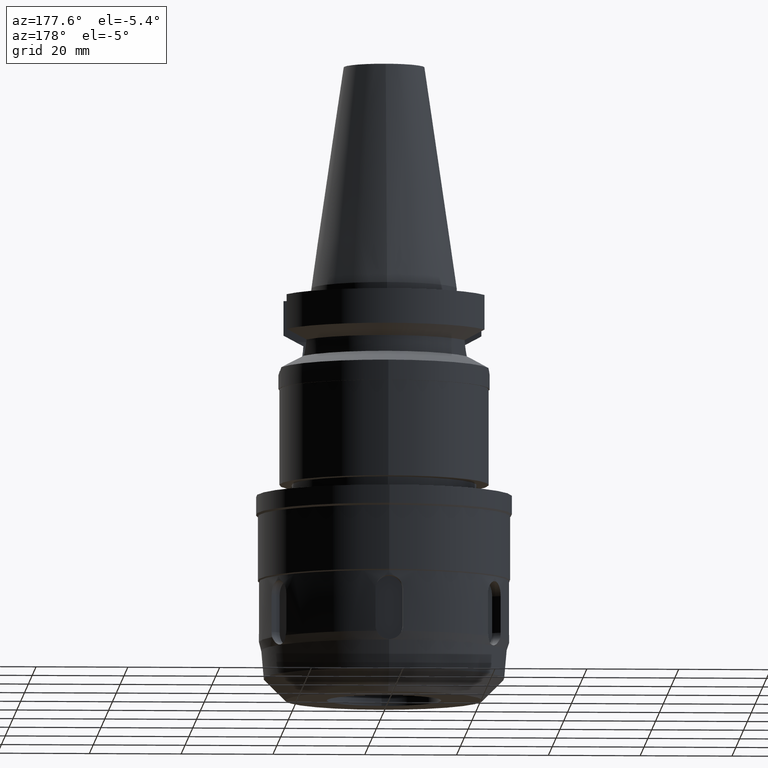
[diagram: clean part render]
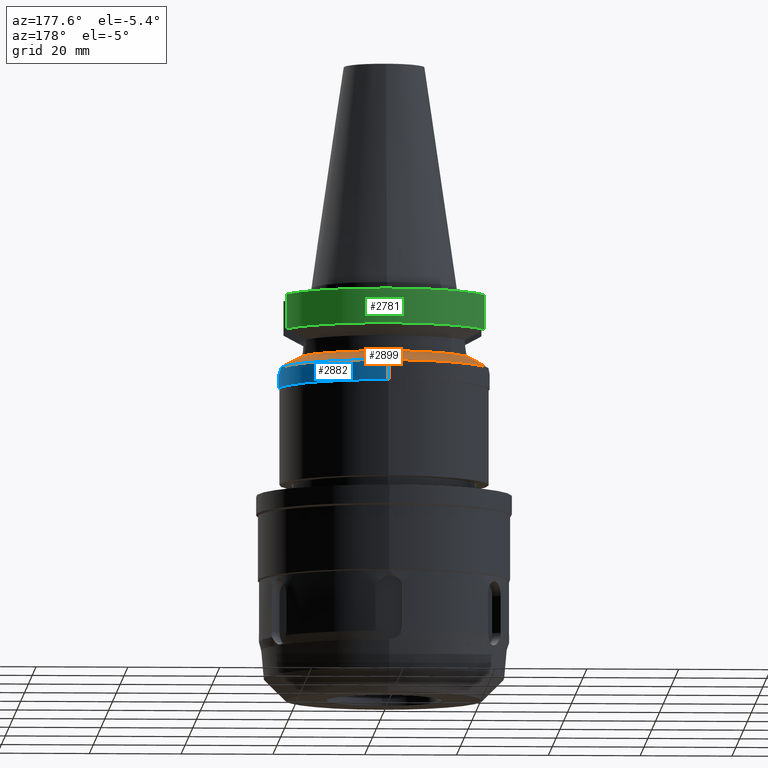
[diagram: same view with three faces highlighted in distinct colors, each labeled with its STEP entity id]
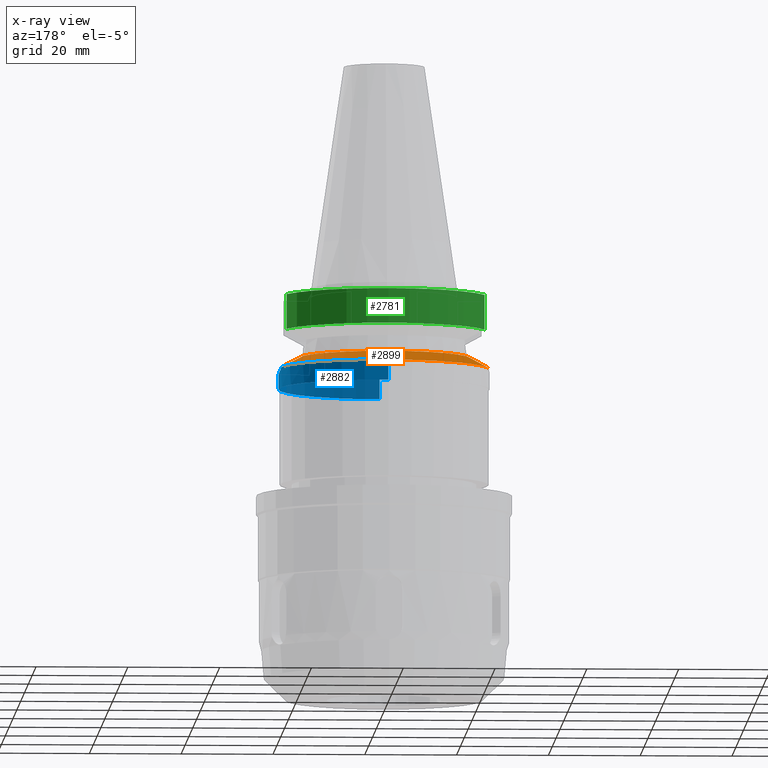
[diagram: x-ray of the same camera — body ghosted, the three highlighted faces saturated]
A machine part, auxiliary view with three faces highlighted in distinct colors.
The next image is the same camera in x-ray (body ghosted, the three faces saturated) — at least one of them is partly hidden behind the body in this view.
Their STEP definitions:

[orange] entity #2899 — the highlighted conical surface has half-angle 60 deg.
#532=CARTESIAN_POINT('',(2.255786346208E1,4.488072640470E0,-1.763279163029E1));
#544=CARTESIAN_POINT('',(-1.775736593456E1,6.758398853744E0,-1.532339055353E1));
#545=CARTESIAN_POINT('',(-1.820695488852E1,6.619830112125E0,-1.553752711715E1));
#546=CARTESIAN_POINT('',(-1.906385593562E1,6.322651705580E0,-1.594722428653E1));
#547=CARTESIAN_POINT('',(-2.005161156079E1,5.918242748231E0,-1.642163205725E1));
#548=CARTESIAN_POINT('',(-2.126758939081E1,5.327769122121E0,-1.700783199838E1));
#549=CARTESIAN_POINT('',(-2.212260541853E1,4.802343039718E0,-1.742173187284E1));
#550=CARTESIAN_POINT('',(-2.255786346208E1,4.488072640470E0,-1.763279163029E1));
#555=CARTESIAN_POINT('',(0.E0,1.022848384030E-14,-1.763279163029E1));
#556=DIRECTION('',(0.E0,0.E0,-1.E0));
#557=DIRECTION('',(-9.807766722644E-1,1.951335930639E-1,0.E0));
#558=AXIS2_PLACEMENT_3D('',#555,#556,#557);
#563=CARTESIAN_POINT('',(0.E0,1.022848384030E-14,-1.763279163029E1));
#564=DIRECTION('',(0.E0,0.E0,-1.E0));
#565=DIRECTION('',(0.E0,1.E0,0.E0));
#566=AXIS2_PLACEMENT_3D('',#563,#564,#565);
#571=CARTESIAN_POINT('',(2.255786346208E1,4.488072640470E0,-1.763279163029E1));
#572=CARTESIAN_POINT('',(2.224326935936E1,4.715219767854E0,-1.748024268605E1));
#573=CARTESIAN_POINT('',(2.156178343249E1,5.160673699127E0,-1.715009553086E1));
#574=CARTESIAN_POINT('',(2.025371930685E1,5.834367162426E0,-1.651879510597E1));
#575=CARTESIAN_POINT('',(1.902846819724E1,6.338946512169E0,-1.593017561434E1));
#576=CARTESIAN_POINT('',(1.818045704E1,6.627997068836E0,-1.552490634839E1));
#577=CARTESIAN_POINT('',(1.775736593456E1,6.758398853744E0,-1.532339055353E1));
#582=CARTESIAN_POINT('',(0.E0,1.022848384030E-14,-1.532339055353E1));
#583=DIRECTION('',(0.E0,0.E0,1.E0));
#584=DIRECTION('',(9.345982070819E-1,3.557052028286E-1,0.E0));
#585=AXIS2_PLACEMENT_3D('',#582,#583,#584);
#590=CARTESIAN_POINT('',(0.E0,1.022848384030E-14,-1.532339055353E1));
#591=DIRECTION('',(0.E0,0.E0,1.E0));
#592=DIRECTION('',(0.E0,1.E0,0.E0));
#593=AXIS2_PLACEMENT_3D('',#590,#591,#592);
#2184=CARTESIAN_POINT('',(1.775736593456E1,6.758398853744E0,-1.532339055353E1));
#2385=VERTEX_POINT('',#532);
#2387=CARTESIAN_POINT('',(0.E0,2.3E1,-1.763279163029E1));
#2388=VERTEX_POINT('',#2387);
#2403=VERTEX_POINT('',#2184);
#2408=VERTEX_POINT('',#544);
#2409=VERTEX_POINT('',#550);
#2410=CARTESIAN_POINT('',(0.E0,1.9E1,-1.532339055353E1));
#2411=VERTEX_POINT('',#2410);
#2883=CARTESIAN_POINT('',(0.E0,1.022848384030E-14,-1.647809109191E1));
#2884=DIRECTION('',(0.E0,0.E0,-1.E0));
#2885=DIRECTION('',(0.E0,-1.E0,0.E0));
#2886=AXIS2_PLACEMENT_3D('',#2883,#2884,#2885);
#2887=CONICAL_SURFACE('',#2886,2.1E1,6.E1);
#2888=ORIENTED_EDGE('',*,*,#2791,.T.);
#2890=ORIENTED_EDGE('',*,*,#2889,.T.);
#2891=ORIENTED_EDGE('',*,*,#2871,.T.);
#2892=ORIENTED_EDGE('',*,*,#2859,.T.);
#2894=ORIENTED_EDGE('',*,*,#2893,.T.);
#2896=ORIENTED_EDGE('',*,*,#2895,.T.);
#2897=EDGE_LOOP('',(#2888,#2890,#2891,#2892,#2894,#2896));
#2898=FACE_OUTER_BOUND('',#2897,.F.);
#551=B_SPLINE_CURVE_WITH_KNOTS('',3,(#544,#545,#546,#547,#548,#549,#550),
.UNSPECIFIED.,.F.,.F.,(4,1,1,1,4),(0.E0,2.5E-1,5.E-1,7.5E-1,1.E0),
.UNSPECIFIED.);
#559=CIRCLE('',#558,2.3E1);
#567=CIRCLE('',#566,2.3E1);
#578=B_SPLINE_CURVE_WITH_KNOTS('',3,(#571,#572,#573,#574,#575,#576,#577),
.UNSPECIFIED.,.F.,.F.,(4,1,1,1,4),(0.E0,2.5E-1,5.E-1,7.5E-1,1.E0),
.UNSPECIFIED.);
#586=CIRCLE('',#585,1.9E1);
#594=CIRCLE('',#593,1.9E1);
#2791=EDGE_CURVE('',#2408,#2409,#551,.T.);
#2859=EDGE_CURVE('',#2385,#2403,#578,.T.);
#2871=EDGE_CURVE('',#2388,#2385,#567,.T.);
#2889=EDGE_CURVE('',#2409,#2388,#559,.T.);
#2893=EDGE_CURVE('',#2403,#2411,#586,.T.);
#2895=EDGE_CURVE('',#2411,#2408,#594,.T.);
#2899=ADVANCED_FACE('',(#2898),#2887,.T.);

[blue] entity #2882 — the highlighted cylindrical surface (partial cylindrical patch) has radius 23 mm, axis along (0, 0, -1).
#467=CARTESIAN_POINT('',(0.E0,1.022848384030E-14,-1.763279163029E1));
#468=DIRECTION('',(0.E0,0.E0,-1.E0));
#469=DIRECTION('',(9.807766722644E-1,-1.951335930639E-1,0.E0));
#470=AXIS2_PLACEMENT_3D('',#467,#468,#469);
#517=CARTESIAN_POINT('',(2.255786346208E1,-4.488072640470E0,-1.763279163029E1));
#518=CARTESIAN_POINT('',(2.264814992618E1,-4.034276569681E0,-1.793755494513E1));
#519=CARTESIAN_POINT('',(2.280758013879E1,-3.091528849703E0,-1.843944818404E1));
#520=CARTESIAN_POINT('',(2.296427506530E1,-1.563892683769E0,-1.889882814013E1));
#521=CARTESIAN_POINT('',(2.3E1,-5.266131269406E-1,-1.9E1));
#522=CARTESIAN_POINT('',(2.3E1,0.E0,-1.9E1));
#527=CARTESIAN_POINT('',(2.3E1,0.E0,-1.9E1));
#528=CARTESIAN_POINT('',(2.3E1,5.266070651578E-1,-1.9E1));
#529=CARTESIAN_POINT('',(2.296427587828E1,1.563878656090E0,-1.889883209543E1));
#530=CARTESIAN_POINT('',(2.280758220138E1,3.091514805310E0,-1.843945252399E1));
#531=CARTESIAN_POINT('',(2.264815092887E1,4.034271529985E0,-1.793755832973E1));
#532=CARTESIAN_POINT('',(2.255786346208E1,4.488072640470E0,-1.763279163029E1));
#537=DIRECTION('',(0.E0,-2.603192430893E-14,-1.E0));
#538=VECTOR('',#537,4.367208369710E0);
#539=CARTESIAN_POINT('',(0.E0,2.3E1,-1.763279163029E1));
#540=LINE('',#539,#538);
#563=CARTESIAN_POINT('',(0.E0,1.022848384030E-14,-1.763279163029E1));
#564=DIRECTION('',(0.E0,0.E0,-1.E0));
#565=DIRECTION('',(0.E0,1.E0,0.E0));
#566=AXIS2_PLACEMENT_3D('',#563,#564,#565);
#611=DIRECTION('',(0.E0,2.277793377031E-14,-1.E0));
#612=VECTOR('',#611,4.367208369710E0);
#613=CARTESIAN_POINT('',(0.E0,-2.3E1,-1.763279163029E1));
#614=LINE('',#613,#612);
#618=CARTESIAN_POINT('',(0.E0,1.902121408436E-14,-2.2E1));
#619=DIRECTION('',(0.E0,0.E0,1.E0));
#620=DIRECTION('',(0.E0,-1.E0,0.E0));
#621=AXIS2_PLACEMENT_3D('',#618,#619,#620);
#2380=CARTESIAN_POINT('',(0.E0,-2.3E1,-2.2E1));
#2381=CARTESIAN_POINT('',(0.E0,2.3E1,-2.2E1));
#2382=VERTEX_POINT('',#2380);
#2383=VERTEX_POINT('',#2381);
#2384=VERTEX_POINT('',#527);
#2385=VERTEX_POINT('',#532);
#2386=VERTEX_POINT('',#517);
#2387=CARTESIAN_POINT('',(0.E0,2.3E1,-1.763279163029E1));
#2388=VERTEX_POINT('',#2387);
#2389=CARTESIAN_POINT('',(0.E0,-2.3E1,-1.763279163029E1));
#2390=VERTEX_POINT('',#2389);
#2864=CARTESIAN_POINT('',(0.E0,1.902121408436E-14,5.532E1));
#2865=DIRECTION('',(0.E0,0.E0,-1.E0));
#2866=DIRECTION('',(0.E0,-1.E0,0.E0));
#2867=AXIS2_PLACEMENT_3D('',#2864,#2865,#2866);
#2868=CYLINDRICAL_SURFACE('',#2867,2.3E1);
#2869=ORIENTED_EDGE('',*,*,#2847,.T.);
#2870=ORIENTED_EDGE('',*,*,#2845,.T.);
#2872=ORIENTED_EDGE('',*,*,#2871,.F.);
#2874=ORIENTED_EDGE('',*,*,#2873,.T.);
#2876=ORIENTED_EDGE('',*,*,#2875,.F.);
#2878=ORIENTED_EDGE('',*,*,#2877,.F.);
#2879=ORIENTED_EDGE('',*,*,#2818,.F.);
#2880=EDGE_LOOP('',(#2869,#2870,#2872,#2874,#2876,#2878,#2879));
#2881=FACE_OUTER_BOUND('',#2880,.F.);
#471=CIRCLE('',#470,2.3E1);
#523=B_SPLINE_CURVE_WITH_KNOTS('',3,(#517,#518,#519,#520,#521,#522),
.UNSPECIFIED.,.F.,.F.,(4,1,1,4),(0.E0,3.333333333333E-1,6.666666666667E-1,1.E0),
.UNSPECIFIED.);
#533=B_SPLINE_CURVE_WITH_KNOTS('',3,(#527,#528,#529,#530,#531,#532),
.UNSPECIFIED.,.F.,.F.,(4,1,1,4),(0.E0,3.333333333333E-1,6.666666666667E-1,1.E0),
.UNSPECIFIED.);
#567=CIRCLE('',#566,2.3E1);
#622=CIRCLE('',#621,2.3E1);
#2818=EDGE_CURVE('',#2386,#2390,#471,.T.);
#2845=EDGE_CURVE('',#2384,#2385,#533,.T.);
#2847=EDGE_CURVE('',#2386,#2384,#523,.T.);
#2871=EDGE_CURVE('',#2388,#2385,#567,.T.);
#2873=EDGE_CURVE('',#2388,#2383,#540,.T.);
#2875=EDGE_CURVE('',#2382,#2383,#622,.T.);
#2877=EDGE_CURVE('',#2390,#2382,#614,.T.);
#2882=ADVANCED_FACE('',(#2881),#2868,.T.);

[green] entity #2781 — the highlighted cylindrical surface (partial cylindrical patch) has radius 23 mm, axis along (0, 0, -1).
#108=CARTESIAN_POINT('',(0.E0,1.902121408436E-14,-2.E0));
#109=DIRECTION('',(0.E0,0.E0,-1.E0));
#110=DIRECTION('',(-9.367496997598E-1,3.5E-1,0.E0));
#111=AXIS2_PLACEMENT_3D('',#108,#109,#110);
#116=CARTESIAN_POINT('',(0.E0,1.902121408436E-14,-2.E0));
#117=DIRECTION('',(0.E0,0.E0,-1.E0));
#118=DIRECTION('',(0.E0,1.E0,0.E0));
#119=AXIS2_PLACEMENT_3D('',#116,#117,#118);
#323=CARTESIAN_POINT('',(2.154524325238E1,8.049999577379E0,-9.567211146543E0));
#376=CARTESIAN_POINT('',(0.E0,1.093341284897E-14,-9.567208369711E0));
#377=DIRECTION('',(0.E0,0.E0,1.E0));
#378=DIRECTION('',(9.367496997597E-1,3.500000000001E-1,0.E0));
#379=AXIS2_PLACEMENT_3D('',#376,#377,#378);
#384=CARTESIAN_POINT('',(0.E0,1.093341284897E-14,-9.567208369711E0));
#385=DIRECTION('',(0.E0,0.E0,1.E0));
#386=DIRECTION('',(0.E0,1.E0,0.E0));
#387=AXIS2_PLACEMENT_3D('',#384,#385,#386);
#397=CARTESIAN_POINT('',(-2.154524231189E1,8.050002094538E0,-9.567194606710E0));
#402=DIRECTION('',(1.034184289800E-7,2.767917969821E-7,-1.E0));
#403=VECTOR('',#402,7.567194606711E0);
#404=CARTESIAN_POINT('',(-2.154524309447E1,8.05E0,-2.E0));
#405=LINE('',#404,#403);
#409=DIRECTION('',(-2.086700995845E-8,5.584906033785E-8,1.E0));
#410=VECTOR('',#409,7.567211146543E0);
#411=CARTESIAN_POINT('',(2.154524325238E1,8.049999577379E0,-9.567211146543E0));
#412=LINE('',#411,#410);
#2432=VERTEX_POINT('',#397);
#2433=VERTEX_POINT('',#323);
#2434=CARTESIAN_POINT('',(-1.303073946459E-14,2.3E1,-9.567208369711E0));
#2435=VERTEX_POINT('',#2434);
#2442=CARTESIAN_POINT('',(-2.154524309447E1,8.05E0,-2.E0));
#2443=VERTEX_POINT('',#2442);
#2444=CARTESIAN_POINT('',(0.E0,2.3E1,-2.E0));
#2445=CARTESIAN_POINT('',(2.154524309447E1,8.05E0,-2.E0));
#2446=VERTEX_POINT('',#2444);
#2447=VERTEX_POINT('',#2445);
#2768=CARTESIAN_POINT('',(0.E0,1.902121408436E-14,5.532E1));
#2769=DIRECTION('',(0.E0,0.E0,-1.E0));
#2770=DIRECTION('',(0.E0,-1.E0,0.E0));
#2771=AXIS2_PLACEMENT_3D('',#2768,#2769,#2770);
#2772=CYLINDRICAL_SURFACE('',#2771,2.3E1);
#2773=ORIENTED_EDGE('',*,*,#2759,.T.);
#2774=ORIENTED_EDGE('',*,*,#2748,.F.);
#2775=ORIENTED_EDGE('',*,*,#2746,.F.);
#2776=ORIENTED_EDGE('',*,*,#2725,.T.);
#2777=ORIENTED_EDGE('',*,*,#2591,.F.);
#2778=ORIENTED_EDGE('',*,*,#2589,.F.);
#2779=EDGE_LOOP('',(#2773,#2774,#2775,#2776,#2777,#2778));
#2780=FACE_OUTER_BOUND('',#2779,.F.);
#112=CIRCLE('',#111,2.3E1);
#120=CIRCLE('',#119,2.3E1);
#380=CIRCLE('',#379,2.3E1);
#388=CIRCLE('',#387,2.3E1);
#2589=EDGE_CURVE('',#2443,#2446,#112,.T.);
#2591=EDGE_CURVE('',#2446,#2447,#120,.T.);
#2725=EDGE_CURVE('',#2433,#2447,#412,.T.);
#2746=EDGE_CURVE('',#2433,#2435,#380,.T.);
#2748=EDGE_CURVE('',#2435,#2432,#388,.T.);
#2759=EDGE_CURVE('',#2443,#2432,#405,.T.);
#2781=ADVANCED_FACE('',(#2780),#2772,.T.);